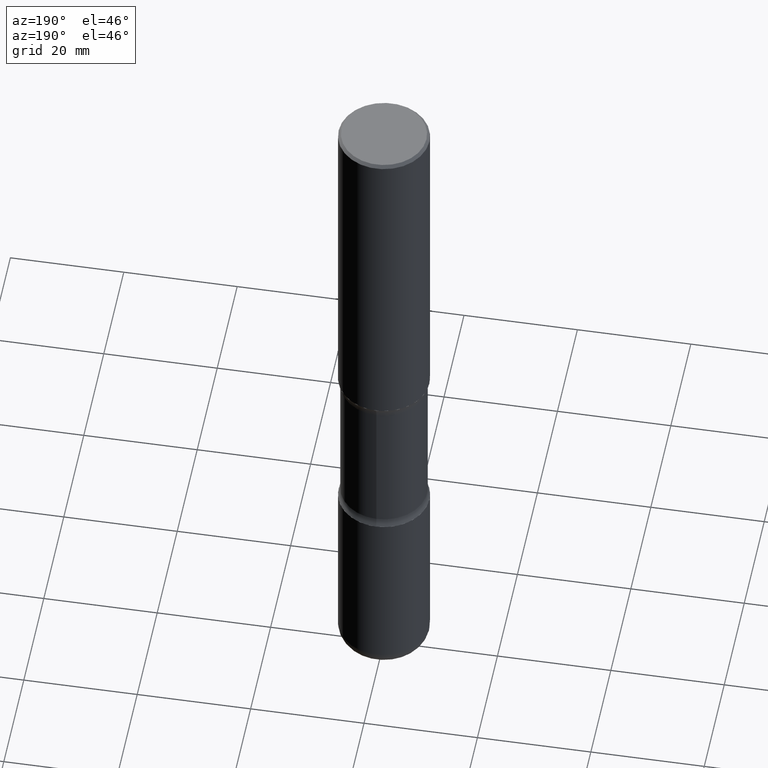
[diagram: clean part render]
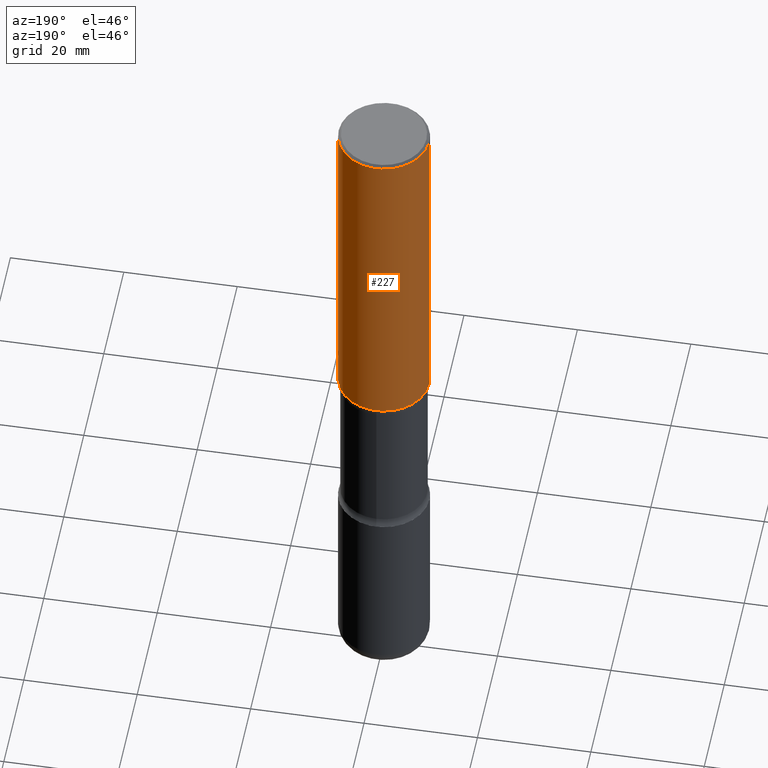
[diagram: same view with one face highlighted and labeled with its STEP entity id]
A machine part, auxiliary view. The second image highlights one B-rep face of the part: STEP entity #227.
In plain terms, the highlighted cylindrical surface (partial cylindrical patch) has radius 7.9997 mm, axis along (-0, 0, 1).
Its self-contained STEP definition (entity closure, byte-faithful):
#11 = EDGE_CURVE ( 'NONE', #453, #43, #58, .T. ) ;
#19 = CARTESIAN_POINT ( 'NONE',  ( -0.3149499999999998967, 2.129454468560425784E-15, -0.02000000000000006981 ) ) ;
#43 = VERTEX_POINT ( 'NONE', #19 ) ;
#51 = CYLINDRICAL_SURFACE ( 'NONE', #265, 0.3149500000000000077 ) ;
#52 = AXIS2_PLACEMENT_3D ( 'NONE', #273, #107, #374 ) ;
#58 = CIRCLE ( 'NONE', #52, 0.3149499999999998967 ) ;
#66 = CIRCLE ( 'NONE', #331, 0.3149500000000001743 ) ;
#87 = VERTEX_POINT ( 'NONE', #451 ) ;
#107 = DIRECTION ( 'NONE',  ( -2.445468806185136597E-29, 3.491481338843145583E-15, 1.000000000000000000 ) ) ;
#130 = ORIENTED_EDGE ( 'NONE', *, *, #11, .F. ) ;
#132 = FACE_OUTER_BOUND ( 'NONE', #166, .T. ) ;
#139 = DIRECTION ( 'NONE',  ( 1.000000000000000000, -6.982962677686266711E-15, 4.876176775795936353E-29 ) ) ;
#147 = VERTEX_POINT ( 'NONE', #472 ) ;
#166 = EDGE_LOOP ( 'NONE', ( #379, #532, #130, #474 ) ) ;
#184 = EDGE_CURVE ( 'NONE', #87, #43, #337, .T. ) ;
#227 = ADVANCED_FACE ( 'NONE', ( #132 ), #51, .T. ) ;
#260 = CARTESIAN_POINT ( 'NONE',  ( 0.3149500000000000077, -2.199284095337289871E-15, 1.535751875536930130E-29 ) ) ;
#263 = CARTESIAN_POINT ( 'NONE',  ( 5.873037884934225470E-29, -8.385141583365698841E-15, -2.401600000000000623 ) ) ;
#265 = AXIS2_PLACEMENT_3D ( 'NONE', #301, #348, #139 ) ;
#269 = EDGE_CURVE ( 'NONE', #147, #453, #304, .T. ) ;
#273 = CARTESIAN_POINT ( 'NONE',  ( 4.890937612370289799E-31, -6.982962677686315028E-17, -0.02000000000000006981 ) ) ;
#286 = EDGE_CURVE ( 'NONE', #147, #87, #66, .T. ) ;
#301 = CARTESIAN_POINT ( 'NONE',  ( 0.000000000000000000, 0.000000000000000000, 0.000000000000000000 ) ) ;
#304 = LINE ( 'NONE', #260, #493 ) ;
#331 = AXIS2_PLACEMENT_3D ( 'NONE', #263, #483, #435 ) ;
#337 = LINE ( 'NONE', #507, #345 ) ;
#345 = VECTOR ( 'NONE', #422, 39.37007874015748143 ) ;
#348 = DIRECTION ( 'NONE',  ( -2.445468806185136597E-29, 3.491481338843145583E-15, 1.000000000000000000 ) ) ;
#374 = DIRECTION ( 'NONE',  ( 1.000000000000000000, -6.982962677686265922E-15, 0.000000000000000000 ) ) ;
#379 = ORIENTED_EDGE ( 'NONE', *, *, #286, .T. ) ;
#422 = DIRECTION ( 'NONE',  ( -2.445468806185136877E-29, 3.491481338843145188E-15, 1.000000000000000000 ) ) ;
#435 = DIRECTION ( 'NONE',  ( 1.000000000000000000, -6.982962677686265922E-15, 0.000000000000000000 ) ) ;
#451 = CARTESIAN_POINT ( 'NONE',  ( -0.3149500000000001743, -1.989631258794842718E-15, -2.401600000000000623 ) ) ;
#453 = VERTEX_POINT ( 'NONE', #537 ) ;
#472 = CARTESIAN_POINT ( 'NONE',  ( 0.3149500000000001743, -1.058442567870299029E-14, -2.401600000000000623 ) ) ;
#474 = ORIENTED_EDGE ( 'NONE', *, *, #269, .F. ) ;
#483 = DIRECTION ( 'NONE',  ( -2.445468806185136597E-29, 3.491481338843145583E-15, 1.000000000000000000 ) ) ;
#493 = VECTOR ( 'NONE', #527, 39.37007874015748143 ) ;
#507 = CARTESIAN_POINT ( 'NONE',  ( -0.3149500000000000077, 2.237854346276435590E-15, -1.549218606675782676E-29 ) ) ;
#527 = DIRECTION ( 'NONE',  ( -2.445468806185136877E-29, 3.491481338843145188E-15, 1.000000000000000000 ) ) ;
#532 = ORIENTED_EDGE ( 'NONE', *, *, #184, .T. ) ;
#537 = CARTESIAN_POINT ( 'NONE',  ( 0.3149499999999998967, -2.230543471175006266E-15, -0.02000000000000006981 ) ) ;